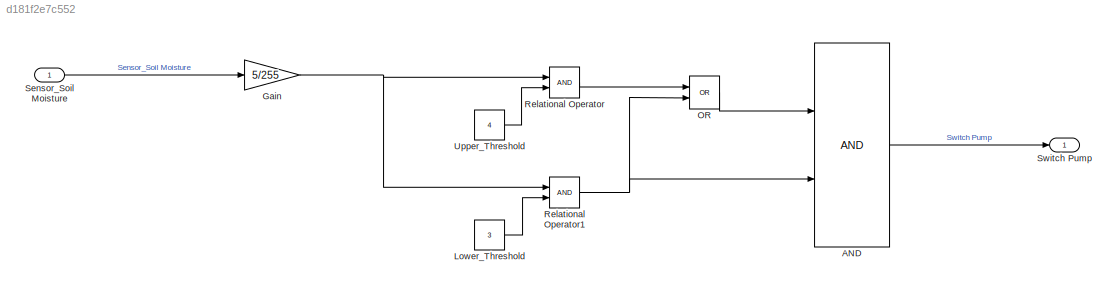
MODEL slx_d181f2e7c552
KIND model
CONFIG AbsTol = auto
CONFIG EnableMultiTasking = off
CONFIG FixedStep = 1e-3
CONFIG MaxStep = auto
CONFIG MinStep = auto
CONFIG RelTol = 1e-3
CONFIG SampleTimeConstraint = Unconstrained
CONFIG SolverName = FixedStepDiscrete
CONFIG StartTime = 0.0
CONFIG StopTime = 10.0
BLOCK [Logic] AND
  AllPortsSameDT = off
  OutDataTypeStr = boolean
  Ports = [2, 1]
BLOCK [Gain] Gain
  Gain = 5/255
BLOCK [Constant] Lower_Threshold
  Value = 3
BLOCK [Logic] OR
  AllPortsSameDT = off
  Operator = OR
  OutDataTypeStr = boolean
  Ports = [2, 1]
BLOCK [RelationalOperator] Relational Operator
  InputSameDT = off
  OutDataTypeStr = boolean
  Ports = [2, 1]
  RndMeth = Simplest
BLOCK [RelationalOperator] Relational Operator1
  InputSameDT = off
  OutDataTypeStr = boolean
  Ports = [2, 1]
  RndMeth = Simplest
BLOCK [Inport] Sensor_Soil Moisture
BLOCK [Outport] Switch Pump
BLOCK [Constant] Upper_Threshold
  Value = 4
LINE AND:1 -> Switch Pump:1
NET Gain:1 -> Relational Operator1:1, Relational Operator:1
LINE Lower_Threshold:1 -> Relational Operator1:2
LINE OR:1 -> AND:1
NET Relational Operator1:1 -> AND:2, OR:2
LINE Relational Operator:1 -> OR:1
LINE Sensor_Soil Moisture:1 -> Gain:1
LINE Upper_Threshold:1 -> Relational Operator:2
note: NET lines group one-source signal fan-out (src -> all destinations, sorted); 1:1 wires keep LINE
